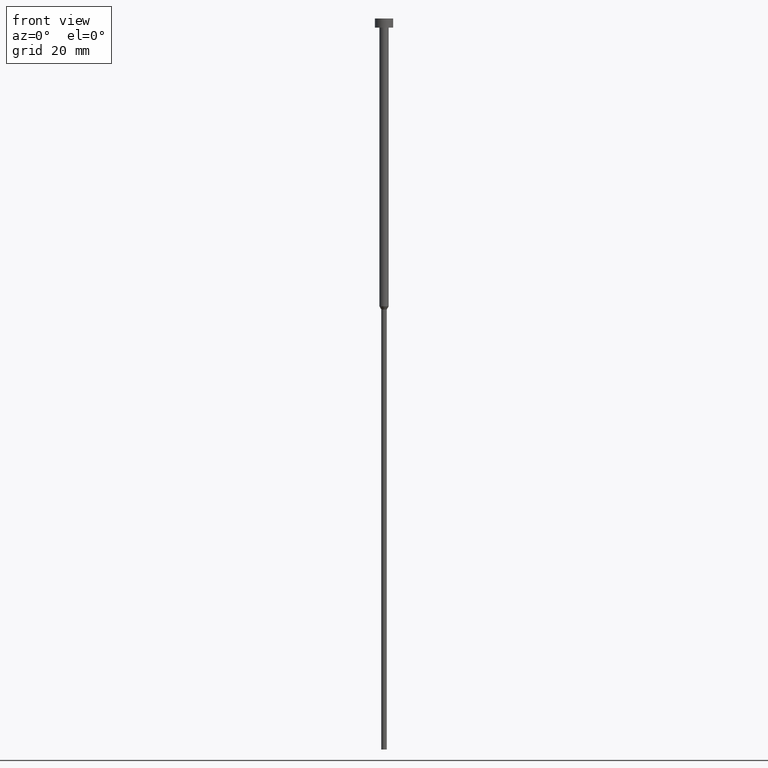
[diagram: clean part render]
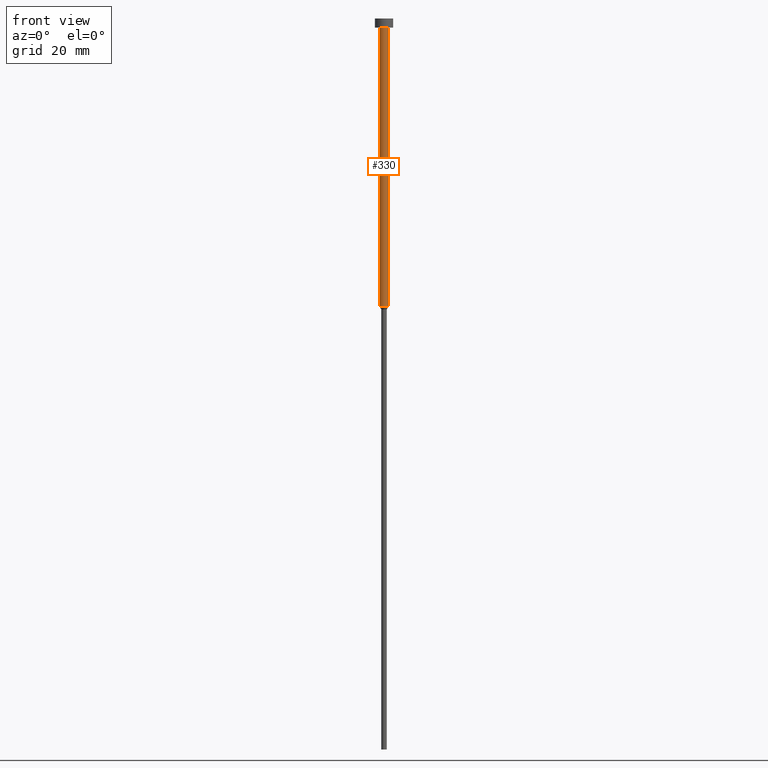
[diagram: same view with one face highlighted and labeled with its STEP entity id]
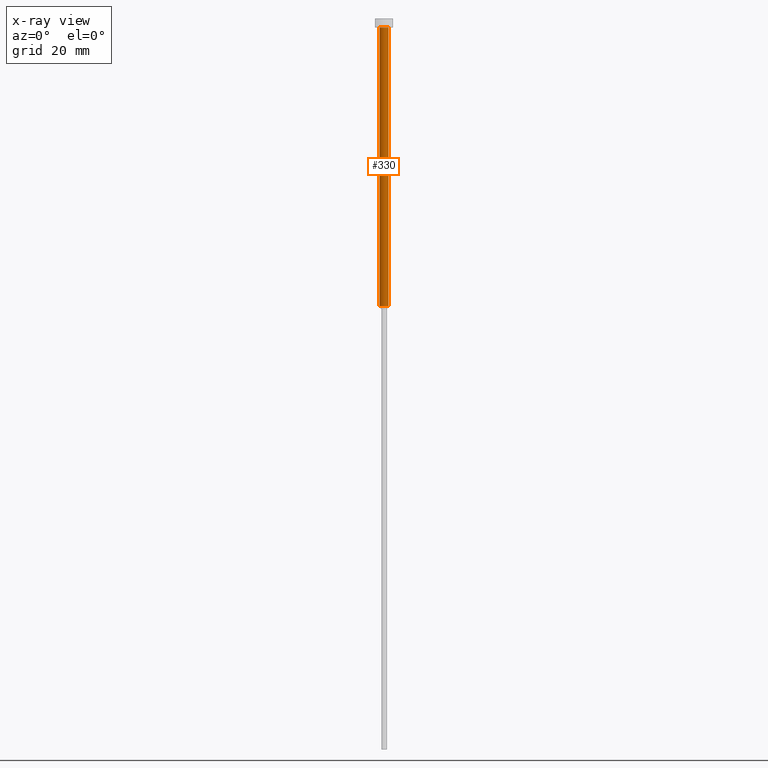
[diagram: x-ray of the same camera — body ghosted, the highlighted face saturated]
A machine part, front view. The second image highlights one B-rep face of the part: STEP entity #330.
The next image is the same camera in x-ray: the body ghosted, the highlighted face saturated — about 0% of this face is hidden behind the body in this view.
In plain terms, the highlighted cylindrical surface (edge-blend (fillet) strip) has radius 1 mm, axis along (-0, -0, 1).
Its self-contained STEP definition (entity closure, byte-faithful):
#9 = VERTEX_POINT ( 'NONE', #231 ) ;
#16 = EDGE_CURVE ( 'NONE', #55, #342, #128, .T. ) ;
#24 = CARTESIAN_POINT ( 'NONE',  ( 1.000000000000003553, 0.000000000000000000, -2.000000000000000444 ) ) ;
#29 = ORIENTED_EDGE ( 'NONE', *, *, #136, .T. ) ;
#55 = VERTEX_POINT ( 'NONE', #268 ) ;
#75 = DIRECTION ( 'NONE',  ( 1.000000000000000000, 0.000000000000000000, 0.000000000000000000 ) ) ;
#77 = CARTESIAN_POINT ( 'NONE',  ( -1.000000000000003331, 1.224646799147357151E-16, 0.000000000000000000 ) ) ;
#84 = DIRECTION ( 'NONE',  ( -0.000000000000000000, -0.000000000000000000, 1.000000000000000000 ) ) ;
#100 = AXIS2_PLACEMENT_3D ( 'NONE', #277, #275, #75 ) ;
#128 = CIRCLE ( 'NONE', #341, 1.000000000000003553 ) ;
#131 = VECTOR ( 'NONE', #159, 1000.000000000000000 ) ;
#136 = EDGE_CURVE ( 'NONE', #287, #342, #350, .T. ) ;
#140 = DIRECTION ( 'NONE',  ( -0.000000000000000000, -0.000000000000000000, 1.000000000000000000 ) ) ;
#159 = DIRECTION ( 'NONE',  ( -0.000000000000000000, -0.000000000000000000, 1.000000000000000000 ) ) ;
#163 = LINE ( 'NONE', #77, #242 ) ;
#170 = ORIENTED_EDGE ( 'NONE', *, *, #352, .T. ) ;
#208 = CARTESIAN_POINT ( 'NONE',  ( 0.000000000000000000, 0.000000000000000000, -2.000000000000000444 ) ) ;
#221 = CARTESIAN_POINT ( 'NONE',  ( 1.000000000000003109, 0.000000000000000000, -63.00000000000000000 ) ) ;
#231 = CARTESIAN_POINT ( 'NONE',  ( -1.000000000000003109, 1.224646799147356905E-16, -63.00000000000000000 ) ) ;
#242 = VECTOR ( 'NONE', #297, 1000.000000000000000 ) ;
#249 = CARTESIAN_POINT ( 'NONE',  ( 0.000000000000000000, 0.000000000000000000, 0.000000000000000000 ) ) ;
#255 = ORIENTED_EDGE ( 'NONE', *, *, #272, .F. ) ;
#260 = ORIENTED_EDGE ( 'NONE', *, *, #16, .F. ) ;
#261 = EDGE_LOOP ( 'NONE', ( #255, #170, #29, #260 ) ) ;
#266 = AXIS2_PLACEMENT_3D ( 'NONE', #249, #140, #278 ) ;
#268 = CARTESIAN_POINT ( 'NONE',  ( -1.000000000000003553, 1.224646799147357398E-16, -2.000000000000000444 ) ) ;
#272 = EDGE_CURVE ( 'NONE', #9, #55, #163, .T. ) ;
#275 = DIRECTION ( 'NONE',  ( -0.000000000000000000, -0.000000000000000000, 1.000000000000000000 ) ) ;
#277 = CARTESIAN_POINT ( 'NONE',  ( 0.000000000000000000, 0.000000000000000000, -63.00000000000000000 ) ) ;
#278 = DIRECTION ( 'NONE',  ( 1.000000000000000000, 0.000000000000000000, 0.000000000000000000 ) ) ;
#287 = VERTEX_POINT ( 'NONE', #221 ) ;
#294 = CARTESIAN_POINT ( 'NONE',  ( 1.000000000000003331, 0.000000000000000000, 0.000000000000000000 ) ) ;
#297 = DIRECTION ( 'NONE',  ( -0.000000000000000000, -0.000000000000000000, 1.000000000000000000 ) ) ;
#313 = CIRCLE ( 'NONE', #100, 1.000000000000003109 ) ;
#315 = DIRECTION ( 'NONE',  ( 1.000000000000000000, 0.000000000000000000, 0.000000000000000000 ) ) ;
#324 = FACE_OUTER_BOUND ( 'NONE', #261, .T. ) ;
#330 = ADVANCED_FACE ( 'NONE', ( #324 ), #331, .T. ) ;
#331 = CYLINDRICAL_SURFACE ( 'NONE', #266, 1.000000000000003331 ) ;
#341 = AXIS2_PLACEMENT_3D ( 'NONE', #208, #84, #315 ) ;
#342 = VERTEX_POINT ( 'NONE', #24 ) ;
#350 = LINE ( 'NONE', #294, #131 ) ;
#352 = EDGE_CURVE ( 'NONE', #9, #287, #313, .T. ) ;